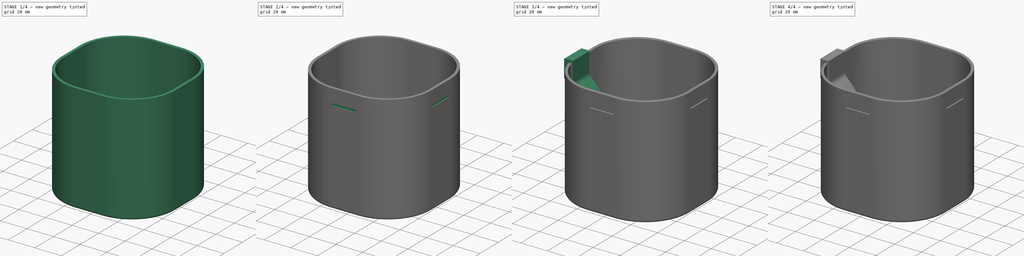
[diagram: build sequence overview — one tinted view per stage of 4, left to right]
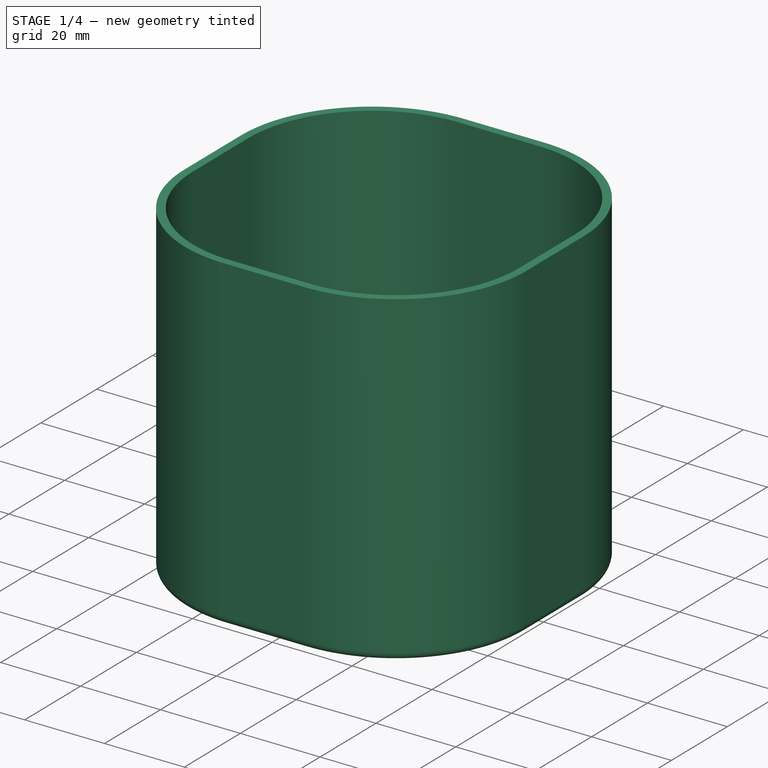
[diagram: stage 1 of 4 — iso view after this stage's code; geometry added in this stage tinted green]
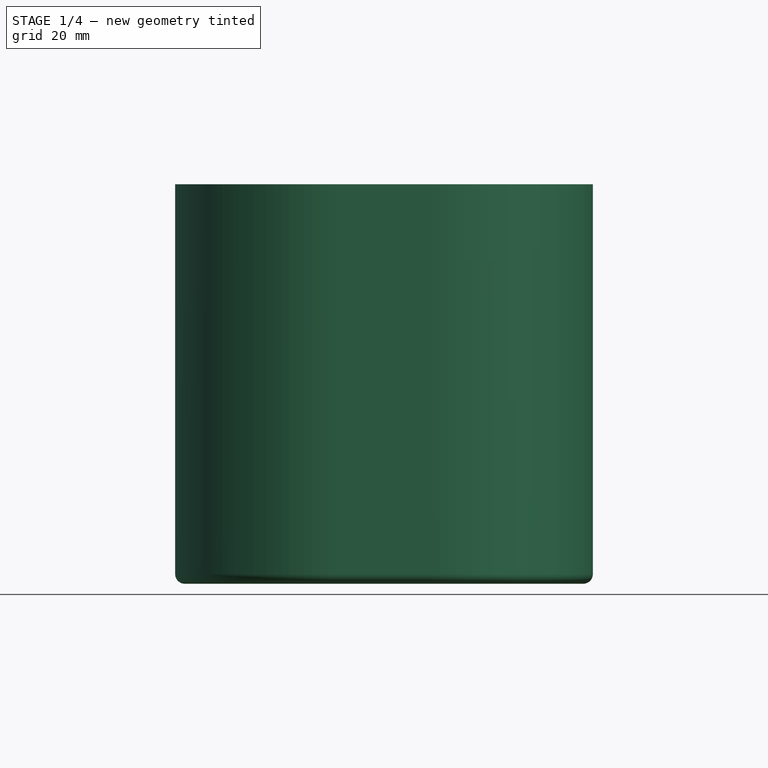
[diagram: stage 1 of 4 — front view after this stage's code; geometry added in this stage tinted green]
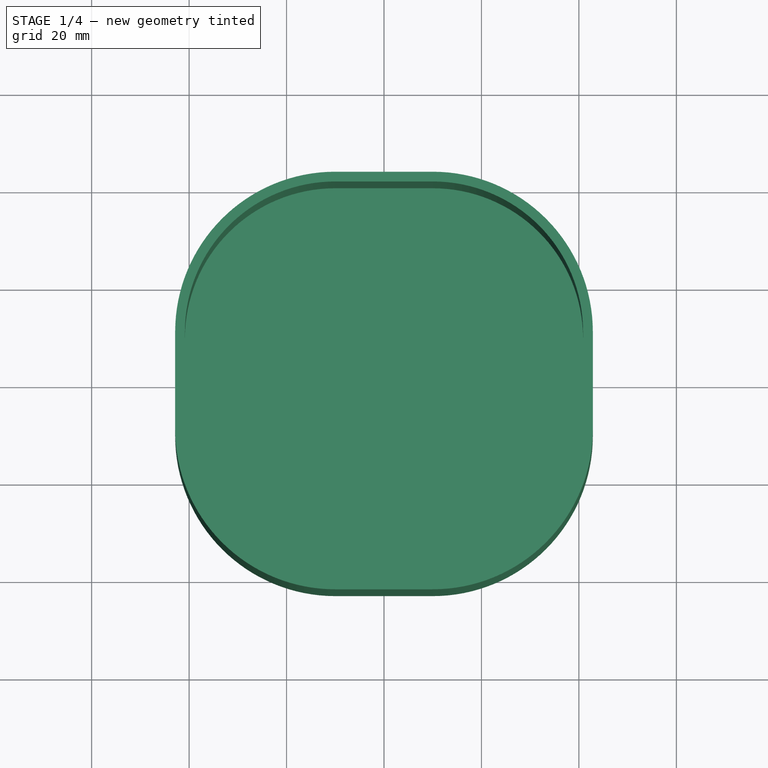
[diagram: stage 1 of 4 — top view after this stage's code; geometry added in this stage tinted green]
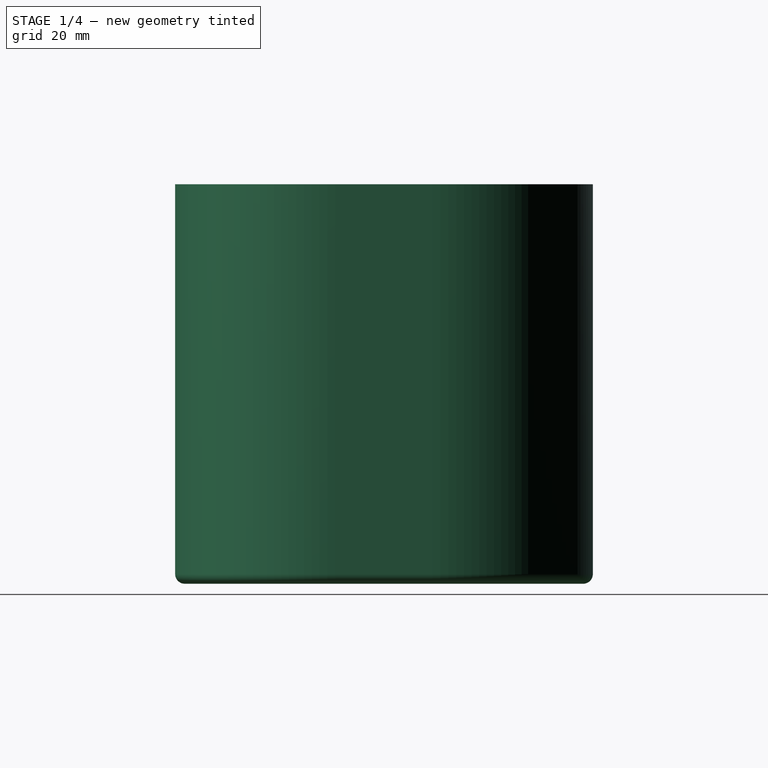
[diagram: stage 1 of 4 — right view after this stage's code; geometry added in this stage tinted green]
FCSTD DOCUMENT  (FreeCAD 0.22R38314 (Git))
Label: cup holder 2
License: All rights reserved
LicenseURL: http://en.wikipedia.org/wiki/All_rights_reserved
objects: Sketcher::SketchObject×6, PartDesign::Pad×4, PartDesign::Body×3, PartDesign::Chamfer×2, Spreadsheet::Sheet×1, PartDesign::Thickness×1, PartDesign::Pocket×1, PartDesign::PolarPattern×1, PartDesign::Hole×1
note: 38 computed .brp shape members not serialized (recipe doc carries the construction recipe); baked Part::Feature solids carry a one-line shape summary decoded from their .brp

FEATURE [Spreadsheet::Sheet] Spreadsheet  label="q"
  cells = A2='diameter; B2(diameter)=90; A3='height; B3(height)=80; A4='wall; B4(wall)=2; A5='hole spacing; B5(hole_spacing)=40; A6='notch offset; B6(notch_offset)=10; A7='notch depth; B7(notch_depth)=1; A8='notch length; B8(notch_length)=18; A9='notch height; B9(notch_height)=2; A11='wing thickness; B11(wing_thickness)=1.2; A12='wing radius; B12(wing_radius)=32; A13='margin; B13(margin)=0.2; A14='wing key height; B14(wing_key_height)=1; A15='wing key depth; B15(wing_key_depth)=0.8
FEATURE [Sketcher::SketchObject] Sketch
  AttachmentSupport = -> [XY_Plane]
  FullyConstrained = true
  MapMode = 5
  expr: Constraints[20] = <<q>>.notch_length + 2
  expr: Constraints[23] = <<q>>.diameter
  sketch-geometry (13):
    g0: LineSegment StartX=-40.8579 StartY=10 StartZ=0 EndX=-40.8579 EndY=-10 EndZ=0
    g1: LineSegment StartX=-10 StartY=-40.8579 StartZ=0 EndX=10 EndY=-40.8579 EndZ=0
    g2: LineSegment StartX=40.8579 StartY=-10 StartZ=0 EndX=40.8579 EndY=10 EndZ=0
    g3: LineSegment StartX=10 StartY=40.8579 StartZ=0 EndX=-10 EndY=40.8579 EndZ=0
    g4: ArcOfCircle CenterX=-10 CenterY=10 CenterZ=0 NormalX=0 NormalY=0 NormalZ=1 AngleXU=0 Radius=30.8579 StartAngle=1.5708 EndAngle=3.14159
    g5: ArcOfCircle CenterX=-10 CenterY=-10 CenterZ=0 NormalX=0 NormalY=0 NormalZ=1 AngleXU=0 Radius=30.8579 StartAngle=3.14159 EndAngle=4.71239
    g6: ArcOfCircle CenterX=10 CenterY=-10 CenterZ=0 NormalX=0 NormalY=0 NormalZ=1 AngleXU=0 Radius=30.8579 StartAngle=4.71239 EndAngle=6.28319
    g7: ArcOfCircle CenterX=10 CenterY=10 CenterZ=0 NormalX=0 NormalY=0 NormalZ=1 AngleXU=0 Radius=30.8579 StartAngle=0 EndAngle=1.5708
    g8: GeomPoint X=-40.8579 Y=40.8579 Z=0
    g9: GeomPoint X=40.8579 Y=-40.8579 Z=0
    g10: Circle CenterX=0 CenterY=0 CenterZ=0 NormalX=0 NormalY=0 NormalZ=1 AngleXU=0 Radius=45
    g11: GeomPoint X=-31.8198 Y=-31.8198 Z=0
    g12: LineSegment StartX=0 StartY=0 StartZ=0 EndX=-31.8198 EndY=-31.8198 EndZ=0
  constraints (30):
    c: Tangent(g0,g4) = -1.5708
    c: Tangent(g0,g5) = -1.5708
    c: Tangent(g1,g5) = -1.5708
    c: Tangent(g1,g6) = -1.5708
    c: Tangent(g2,g6) = -1.5708
    c: Tangent(g2,g7) = -1.5708
    c: Tangent(g3,g7) = -1.5708
    c: Tangent(g3,g4) = -1.5708
    c: Vertical(g0)
    c: Vertical(g2)
    c: Horizontal(g1)
    c: Horizontal(g3)
    c: Equal(g4,g5)
    c: Equal(g5,g6)
    c: Equal(g6,g7)
    c: PointOnObject(g8,g0)
    c: PointOnObject(g8,g3)
    c: PointOnObject(g9,g1)
    c: PointOnObject(g9,g2)
    c: Symmetric(g5,g7,g-1)
    c: DistanceX(g1,g1) = 20
    c: Equal(g1,g2)
    c: Coincident(g10,g-1)
    c: Diameter(g10) = 90
    c: PointOnObject(g11,g5)
    c: Coincident(g12,g10)
    c: Coincident(g12,g11)
    c: Angle(g-2,g12) = 2.35619
    c: PointOnObject(g11,g10)
    c: DistanceX(g0,g10) = 40.8579  'flat_distance'
FEATURE [PartDesign::Pad] Pad
  Direction = (0,0,1)
  Length = 80
  Length2 = 10
  Profile = -> Sketch
  ReferenceAxis = -> Sketch [N_Axis]
  Suppressed = false
  Type = 0
  expr: Length = <<q>>.height
FEATURE [PartDesign::Thickness] Thickness
  Base = -> Pad [Face10]
  BaseFeature = -> Pad
  Intersection = false
  Join = 0
  Mode = 0
  SupportTransform = false
  Suppressed = false
  Value = 2
  expr: Value = <<q>>.wall
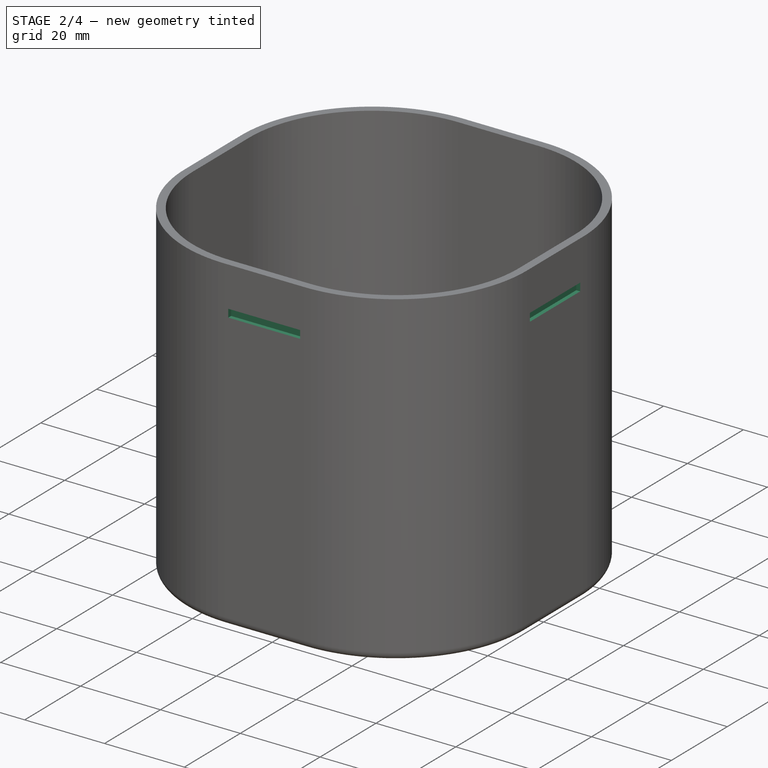
[diagram: stage 2 of 4 — iso view after this stage's code; geometry added in this stage tinted green]
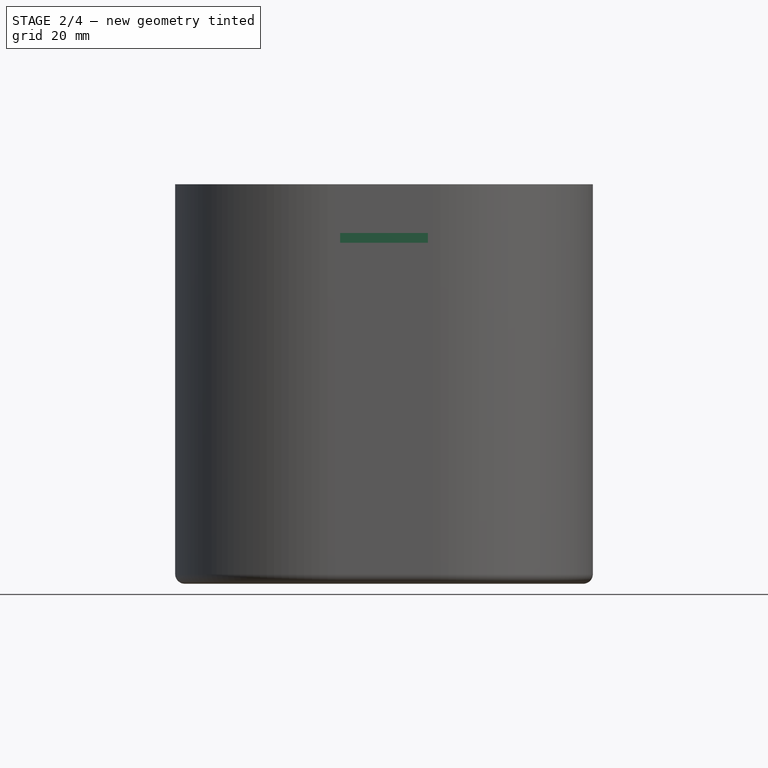
[diagram: stage 2 of 4 — front view after this stage's code; geometry added in this stage tinted green]
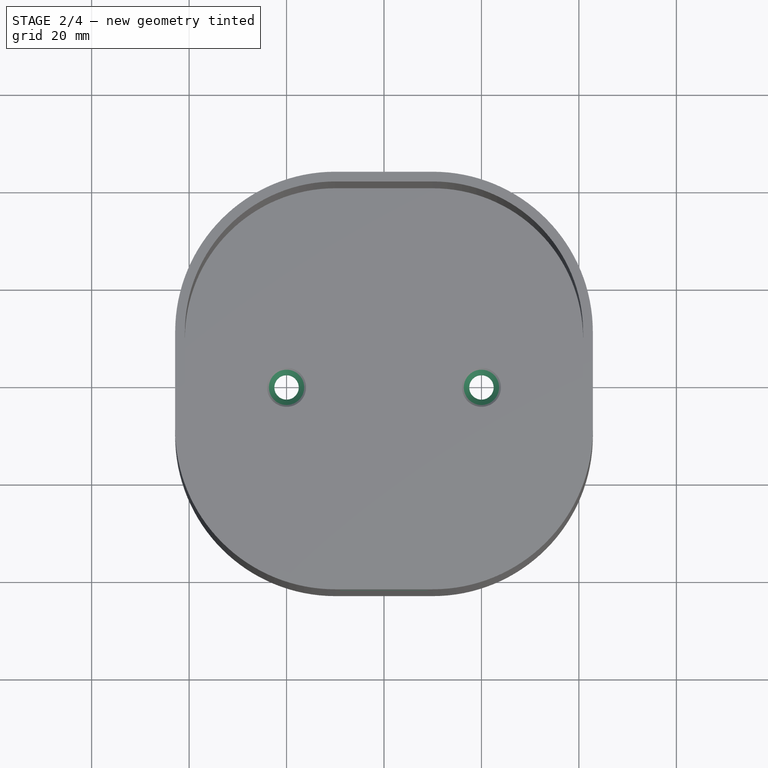
[diagram: stage 2 of 4 — top view after this stage's code; geometry added in this stage tinted green]
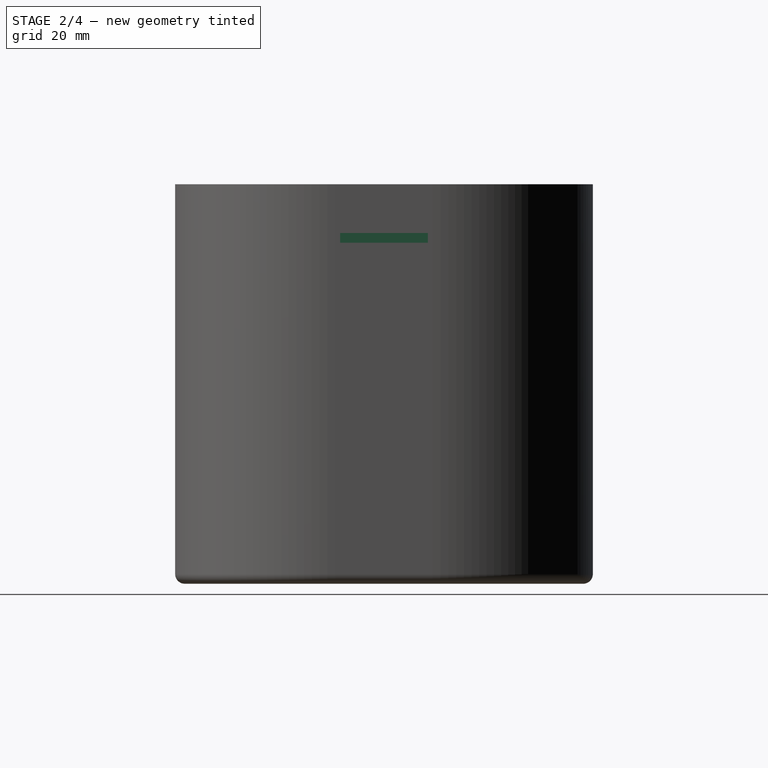
[diagram: stage 2 of 4 — right view after this stage's code; geometry added in this stage tinted green]
FEATURE [Sketcher::SketchObject] Sketch001
  AttachmentSupport = -> [Thickness]
  ExternalGeometry = -> [Thickness]
  FullyConstrained = true
  MapMode = 5
  Placement = pos=(0,-42.8579,0) rot=(1,0,0;1.5708rad)
  expr: Constraints[10] = <<q>>.notch_offset
  expr: Constraints[7] = <<q>>.notch_length
  expr: Constraints[8] = <<q>>.notch_height
  sketch-geometry (4):
    g0: LineSegment StartX=-9 StartY=70 StartZ=0 EndX=-9 EndY=68 EndZ=0
    g1: LineSegment StartX=-9 StartY=68 StartZ=0 EndX=9 EndY=68 EndZ=0
    g2: LineSegment StartX=9 StartY=68 StartZ=0 EndX=9 EndY=70 EndZ=0
    g3: LineSegment StartX=9 StartY=70 StartZ=0 EndX=-9 EndY=70 EndZ=0
  constraints (11):
    c: Coincident(g0,g1)
    c: Coincident(g1,g2)
    c: Coincident(g2,g3)
    c: Coincident(g3,g0)
    c: Vertical(g0)
    c: Vertical(g2)
    c: Horizontal(g1)
    c: DistanceX(g1,g1) = 18
    c: DistanceY(g2,g2) = 2
    c: Symmetric(g2,g0,g-2)
    c: DistanceY(g2,g-3) = 10
FEATURE [PartDesign::Pocket] Pocket
  BaseFeature = -> Thickness
  Direction = (0,1,-2e-16)
  Length = 1
  Length2 = 5
  Profile = -> Sketch001
  ReferenceAxis = -> Sketch001 [N_Axis]
  Suppressed = false
  Type = 0
  expr: Length = <<q>>.notch_depth
FEATURE [PartDesign::PolarPattern] PolarPattern
  Angle = 360
  Axis = -> Z_Axis
  BaseFeature = -> Pocket
  Mode = 0
  Occurrences = 4
  Offset = 120
  Originals = -> [Pocket]
  Suppressed = false
  TransformMode = 0
FEATURE [PartDesign::Body] Body001  label="wing"
  AllowCompound = false
  Group = -> [Sketch002,Pad001,Sketch003,Pad003,Chamfer]
  Origin = -> Origin001
  Tip = -> Chamfer
FEATURE [Sketcher::SketchObject] Sketch005
  AttachmentSupport = -> [XY_Plane]
  FullyConstrained = true
  MapMode = 5
  expr: Constraints[1] = <<q>>.hole_spacing
  expr: Constraints[3] = 4
  sketch-geometry (2):
    g0: Circle CenterX=-20 CenterY=0 CenterZ=0 NormalX=0 NormalY=0 NormalZ=1 AngleXU=0 Radius=2
    g1: Circle CenterX=20 CenterY=0 CenterZ=0 NormalX=0 NormalY=0 NormalZ=1 AngleXU=0 Radius=2
  constraints (5):
    c: Symmetric(g0,g1,g-2)
    c: DistanceX(g0,g1) = 40
    c: PointOnObject(g1,g-1)
    c: Diameter(g1) = 4
    c: Equal(g1,g0)
FEATURE [PartDesign::Hole] Hole
  BaseFeature = -> PolarPattern
  CustomThreadClearance = 0
  Depth = 25
  DepthType = 0
  Diameter = 5
  DrillForDepth = false
  DrillPoint = 1
  DrillPointAngle = 90
  HoleCutCountersinkAngle = 90
  HoleCutCustomValues = false
  HoleCutDepth = 0
  HoleCutDiameter = 8
  HoleCutType = 2
  ModelThread = false
  Profile = -> Sketch005
  Suppressed = false
  Tapered = false
  TaperedAngle = 90
  ThreadClass = 0
  ThreadDepth = 25
  ThreadDepthType = 0
  ThreadDirection = 0
  ThreadFit = 0
  ThreadSize = 6
  ThreadType = 3
  Threaded = false
  UseCustomThreadClearance = false
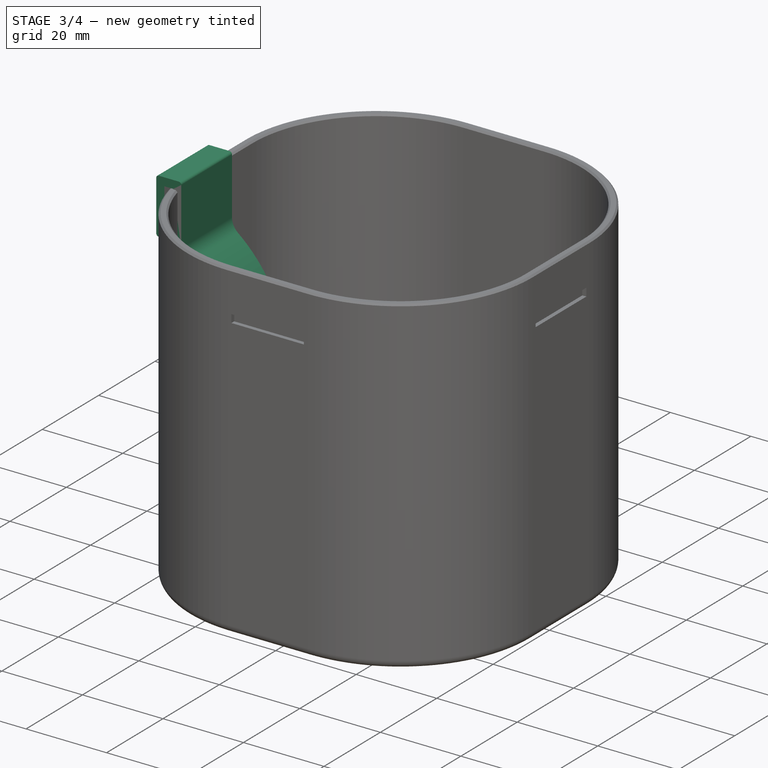
[diagram: stage 3 of 4 — iso view after this stage's code; geometry added in this stage tinted green]
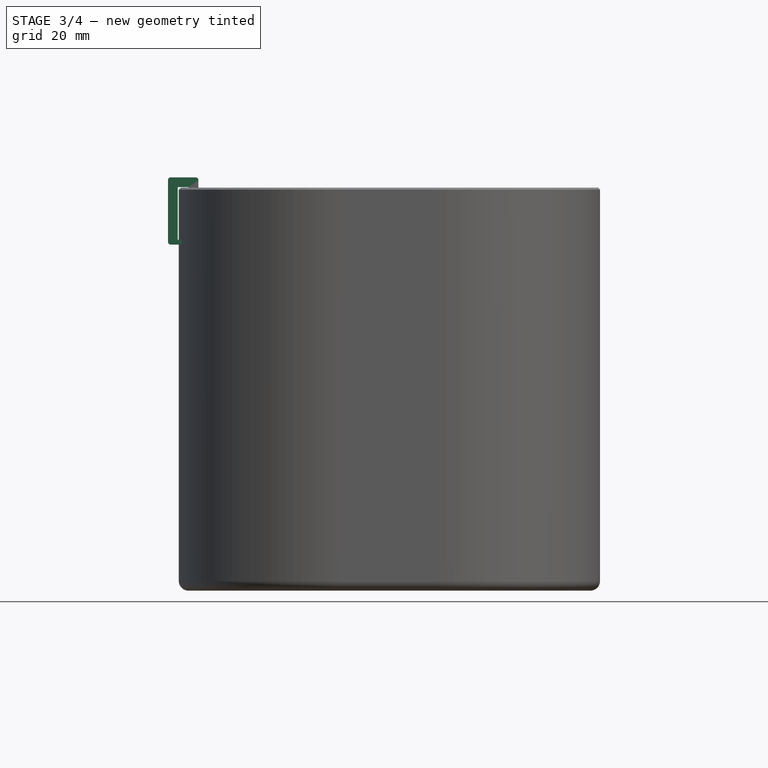
[diagram: stage 3 of 4 — front view after this stage's code; geometry added in this stage tinted green]
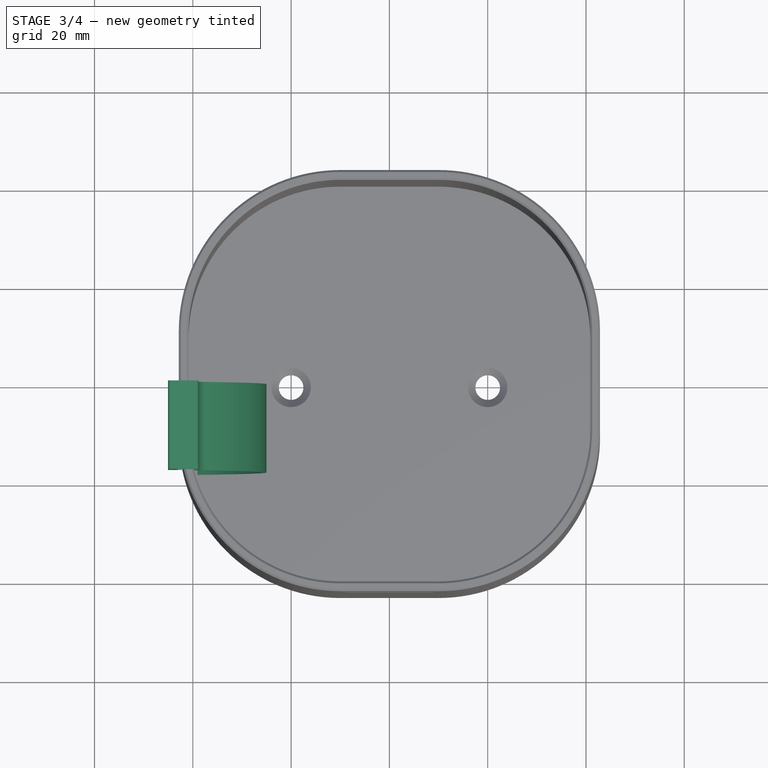
[diagram: stage 3 of 4 — top view after this stage's code; geometry added in this stage tinted green]
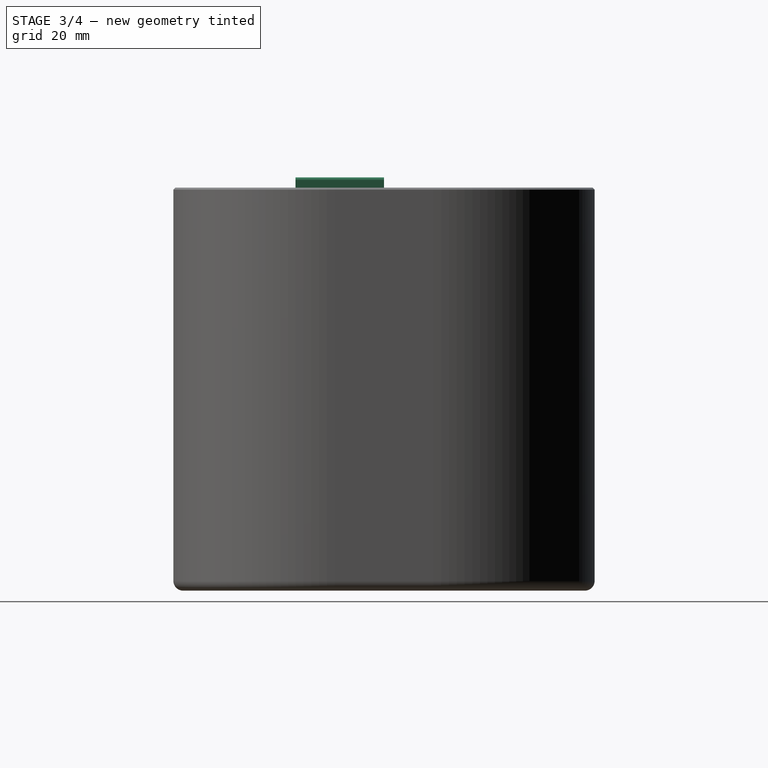
[diagram: stage 3 of 4 — right view after this stage's code; geometry added in this stage tinted green]
FEATURE [Sketcher::SketchObject] Sketch002
  AttachmentSupport = -> [XZ_Plane001]
  FullyConstrained = true
  MapMode = 5
  Placement = pos=(0,0,0) rot=(1,0,0;1.5708rad)
  expr: Constraints[16] = <<q>>.wing_key_height
  expr: Constraints[17] = <<q>>.wing_key_depth
  expr: Constraints[18] = <<q>>.wall
  expr: Constraints[19] = <<q>>.wall + <<q>>.wing_key_depth
  expr: Constraints[20] = <<q>>.wall + <<q>>.margin
  expr: Constraints[21] = <<q>>.notch_offset + (<<q>>.notch_height - <<q>>.wing_key_height) / 2 + <<q>>.margin
  expr: Constraints[22] = <<q>>.wall
  expr: Constraints[23] = <<q>>.height + <<q>>.margin / 2
  expr: Constraints[46] = Sketch.Constraints.flat_distance
  sketch-geometry (19):
    g0: LineSegment StartX=-45.0579 StartY=81.5 StartZ=0 EndX=-45.0579 EndY=69 EndZ=0
    g1: LineSegment StartX=-44.4579 StartY=68.4 StartZ=0 EndX=-42.8579 EndY=68.4 EndZ=0
    g2: LineSegment StartX=-42.2579 StartY=69 StartZ=0 EndX=-42.2579 EndY=69.4 EndZ=0
    g3: LineSegment StartX=-42.2579 StartY=69.4 StartZ=0 EndX=-43.0579 EndY=69.4 EndZ=0
    g4: LineSegment StartX=-43.0579 StartY=69.4 StartZ=0 EndX=-43.0579 EndY=80.1 EndZ=0
    g5: LineSegment StartX=-43.0579 StartY=80.1 StartZ=0 EndX=-40.8579 EndY=80.1 EndZ=0
    g6: LineSegment StartX=-40.8579 StartY=80.1 StartZ=0 EndX=-40.8579 EndY=68.4 EndZ=0
    g7: LineSegment StartX=-40.8579 StartY=68.4 StartZ=0 EndX=-38.8579 EndY=68.4 EndZ=0
    g8: LineSegment StartX=-38.8579 StartY=68.4 StartZ=0 EndX=-38.8579 EndY=81.5 EndZ=0
    g9: LineSegment StartX=-39.4579 StartY=82.1 StartZ=0 EndX=-44.4579 EndY=82.1 EndZ=0
    g10: ArcOfCircle CenterX=-44.4579 CenterY=81.5 CenterZ=0 NormalX=0 NormalY=0 NormalZ=1 AngleXU=0 Radius=0.6 StartAngle=1.5708 EndAngle=3.14159
    g11: GeomPoint X=-45.0579 Y=82.1 Z=0
    g12: ArcOfCircle CenterX=-39.4579 CenterY=81.5 CenterZ=0 NormalX=0 NormalY=0 NormalZ=1 AngleXU=0 Radius=0.6 StartAngle=6.5e-15 EndAngle=1.5708
    g13: GeomPoint X=-38.8579 Y=82.1 Z=0
    g14: ArcOfCircle CenterX=-44.4579 CenterY=69 CenterZ=0 NormalX=0 NormalY=0 NormalZ=1 AngleXU=0 Radius=0.6 StartAngle=3.14159 EndAngle=4.71239
    g15: GeomPoint X=-45.0579 Y=68.4 Z=0
    g16: GeomPoint X=-38.8579 Y=68.4 Z=0
    g17: ArcOfCircle CenterX=-42.8579 CenterY=69 CenterZ=0 NormalX=0 NormalY=0 NormalZ=1 AngleXU=0 Radius=0.6 StartAngle=4.71239 EndAngle=6.28319
    g18: GeomPoint X=-42.2579 Y=68.4 Z=0
  constraints (47):
    c: Vertical(g0)
    c: Horizontal(g1)
    c: Vertical(g2)
    c: Coincident(g2,g3)
    c: Coincident(g3,g4)
    c: Vertical(g4)
    c: Coincident(g4,g5)
    c: Horizontal(g5)
    c: Coincident(g5,g6)
    c: Vertical(g6)
    c: Coincident(g6,g7)
    c: Horizontal(g7)
    c: Vertical(g8)
    c: Horizontal(g9)
    c: Horizontal(g6,g18)
    c: Horizontal(g3)
    c: DistanceY(g18,g2) = 1
    c: DistanceX(g3,g3) = 0.8
    c: DistanceX(g7,g16) = 2
    c: DistanceX(g15,g18) = 2.8
    c: DistanceX(g5,g5) = 2.2
    c: DistanceY(g2,g4) = 10.7
    c: DistanceY(g5,g13) = 2
    c: DistanceY(g-1,g5) = 80.1
    c: PointOnObject(g11,g9)
    c: PointOnObject(g11,g0)
    c: Tangent(g9,g10) = -1.5708
    c: Tangent(g0,g10) = -1.5708
    c: PointOnObject(g13,g9)
    c: PointOnObject(g13,g8)
    c: Tangent(g9,g12) = -1.5708
    c: Tangent(g8,g12) = -1.5708
    c: PointOnObject(g15,g1)
    c: PointOnObject(g15,g0)
    c: Tangent(g1,g14) = -1.5708
    c: Tangent(g0,g14) = -1.5708
    c: PointOnObject(g18,g1)
    c: PointOnObject(g18,g2)
    c: Tangent(g1,g17) = -1.5708
    c: Tangent(g2,g17) = -1.5708
    c: Equal(g10,g12)
    c: Equal(g10,g14)
    c: Equal(g10,g17)
    c: Radius(g10) = 0.6
    c: Coincident(g8,g16)
    c: Coincident(g7,g8)
    c: DistanceX(g5,g-1) = 40.8579
FEATURE [PartDesign::Pad] Pad001
  Direction = (0,-1,2e-16)
  Length = 18
  Length2 = 10
  Placement = pos=(0,0,0) rot=(1,0,0;1.5708rad)
  Profile = -> Sketch002
  ReferenceAxis = -> Sketch002 [N_Axis]
  Suppressed = false
  Type = 0
  expr: Length = <<q>>.notch_length
FEATURE [PartDesign::Body] Body002  label="Body"
  AllowCompound = false
  Group = -> [Sketch004,Pad002]
  Origin = -> Origin002
  Tip = -> Pad002
FEATURE [PartDesign::Pad] Pad003
  BaseFeature = -> Pad001
  Direction = (0,-1,2e-16)
  Length = 18
  Length2 = 10
  Placement = pos=(0,0,0) rot=(1,0,0;1.5708rad)
  Profile = -> Sketch003
  ReferenceAxis = -> Sketch003 [N_Axis]
  Refine = true
  Suppressed = false
  Type = 0
  expr: Length = <<q>>.notch_length
FEATURE [PartDesign::Chamfer] Chamfer001
  Angle = 45
  Base = -> Hole [Face5]
  BaseFeature = -> Hole
  ChamferType = 0
  FlipDirection = false
  Size = 0.4
  Size2 = 1
  SupportTransform = false
  Suppressed = false
  UseAllEdges = false
FEATURE [PartDesign::Body] Body  label="body"
  AllowCompound = false
  Group = -> [Sketch,Pad,Thickness,Sketch001,Pocket,PolarPattern,Sketch005,Hole,Chamfer001]
  Origin = -> Origin
  Tip = -> Chamfer001
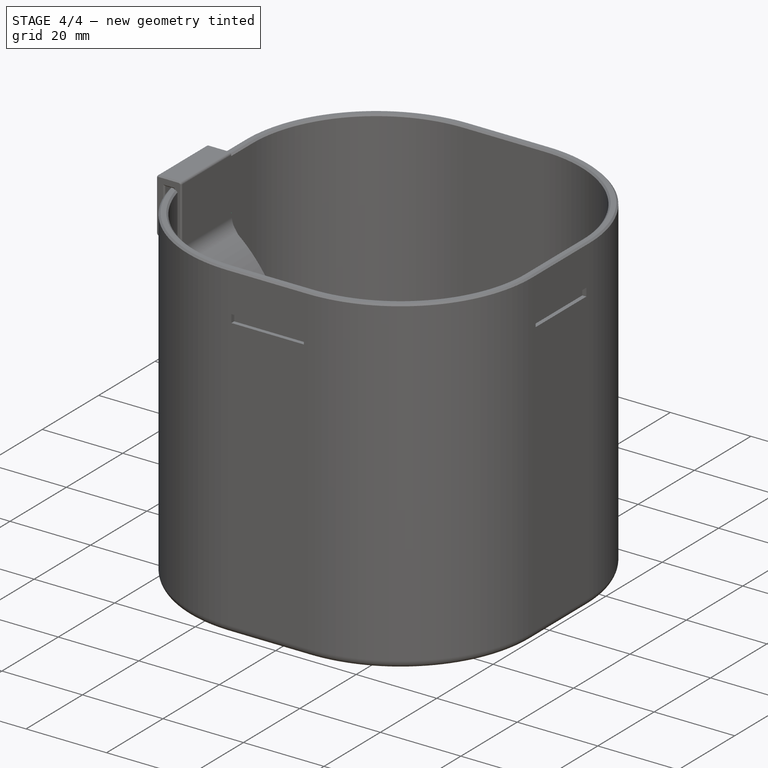
[diagram: stage 4 of 4 — iso view after this stage's code; geometry added in this stage tinted green]
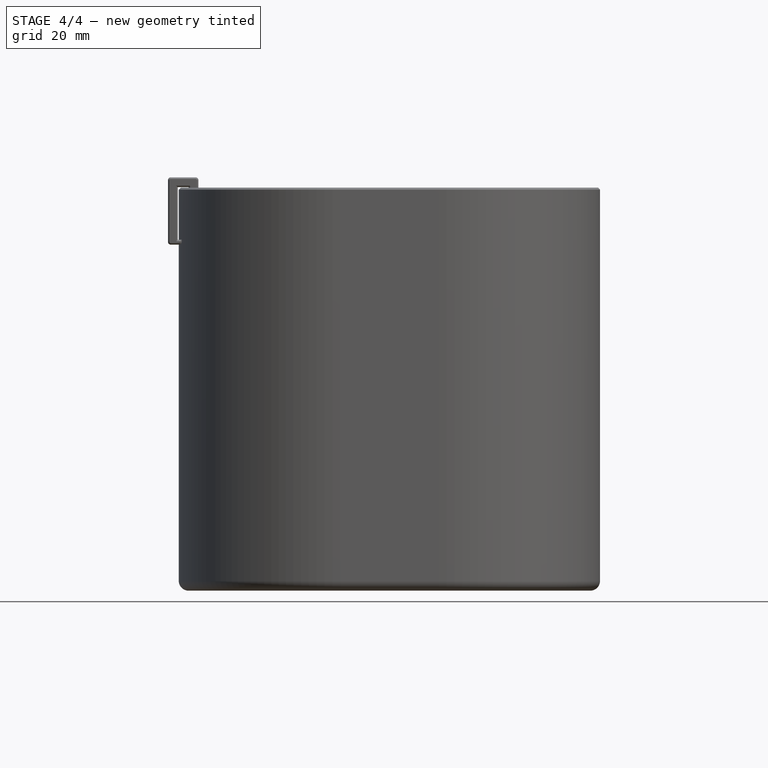
[diagram: stage 4 of 4 — front view after this stage's code; geometry added in this stage tinted green]
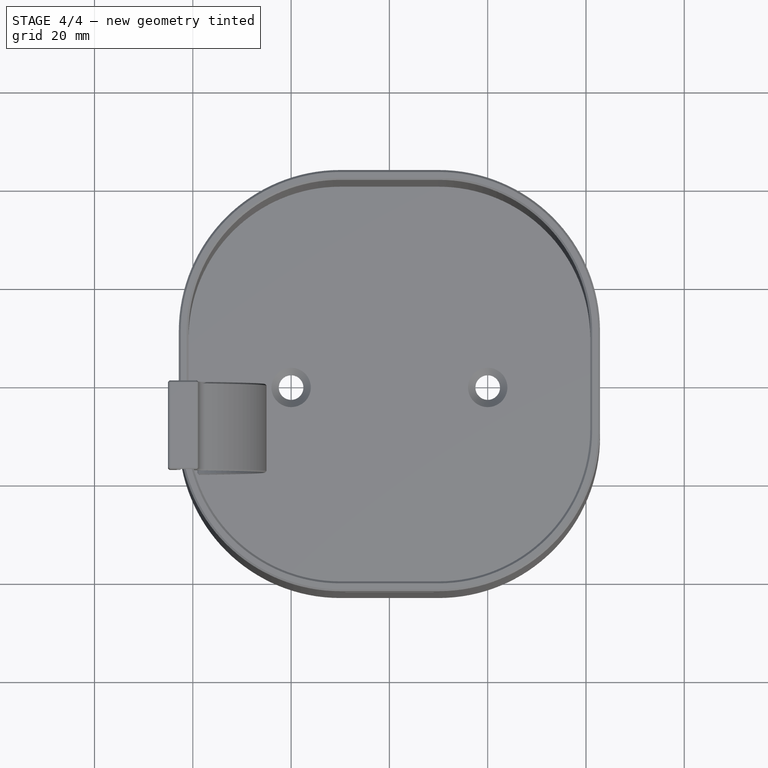
[diagram: stage 4 of 4 — top view after this stage's code; geometry added in this stage tinted green]
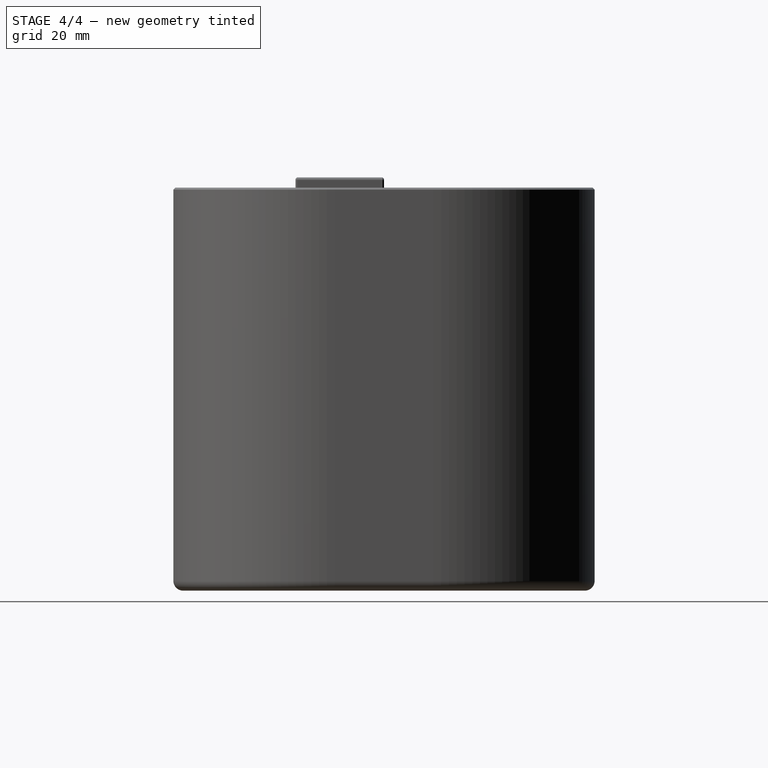
[diagram: stage 4 of 4 — right view after this stage's code; geometry added in this stage tinted green]
FEATURE [Sketcher::SketchObject] Sketch003
  AttachmentOffset = pos=(0,0.2,0) rot=(0,0,1;0rad)
  AttachmentSupport = -> [XZ_Plane001]
  ExternalGeometry = -> [Pad001]
  FullyConstrained = true
  MapMode = 5
  Placement = pos=(0,0,0.2) rot=(1,0,0;1.5708rad)
  expr: Constraints[17] = <<q>>.wing_radius
  sketch-geometry (7):
    g0: LineSegment StartX=-38.8579 StartY=67.2 StartZ=0 EndX=-38.8579 EndY=68.2 EndZ=0
    g1: ArcOfCircle CenterX=-57.8271 CenterY=38.4284 CenterZ=0 NormalX=0 NormalY=0 NormalZ=1 AngleXU=0 Radius=32 StartAngle=5.34691 EndAngle=7.21825
    g2: ArcOfCircle CenterX=-57.8271 CenterY=38.4284 CenterZ=0 NormalX=0 NormalY=0 NormalZ=1 AngleXU=0 Radius=32.8157 StartAngle=5.34691 EndAngle=7.18026
    g3: ArcOfCircle CenterX=-38.6161 CenterY=12.3285 CenterZ=0 NormalX=0 NormalY=0 NormalZ=1 AngleXU=0 Radius=0.407847 StartAngle=2.20531 EndAngle=5.34691
    g4: ArcOfCircle CenterX=-35.8579 CenterY=68.2 CenterZ=0 NormalX=0 NormalY=0 NormalZ=1 AngleXU=0 Radius=5 StartAngle=3.14159 EndAngle=4.07666
    g5: ArcOfCircle CenterX=-34.8579 CenterY=67.2 CenterZ=0 NormalX=0 NormalY=0 NormalZ=1 AngleXU=0 Radius=4 StartAngle=3.14159 EndAngle=4.03867
    g6: LineSegment StartX=-38.8579 StartY=68.2 StartZ=0 EndX=-40.8579 EndY=68.2 EndZ=0
  constraints (18):
    c: Vertical(g0)
    c: Coincident(g2,g1)
    c: Tangent(g3,g2) = -1.5708
    c: Tangent(g3,g1) = 1.5708
    c: Tangent(g1,g4) = 1.5708
    c: Tangent(g0,g5) = 1.5708
    c: Tangent(g2,g5) = 1.5708
    c: Coincident(g0,g-3)
    c: Coincident(g4,g-3)
    c: Coincident(g6,g0)
    c: Coincident(g6,g4)
    c: Perpendicular(g4,g6)
    c: Radius(g4) = 5
    c: Radius(g5) = 4
    c: DistanceY(g0,g0) = 1
    c: DistanceY(g-1,g2) = 12
    c: Vertical(g1,g0)
    c: Radius(g1) = 32
FEATURE [Sketcher::SketchObject] Sketch004
  AttachmentSupport = -> [XZ_Plane002]
  ExternalGeometry = -> [Pad001]
  FullyConstrained = true
  MapMode = 5
  Placement = pos=(0,0,0) rot=(1,0,0;1.5708rad)
  expr: Constraints[1] = <<q>>.wing_radius
  expr: Constraints[3] = <<q>>.wing_radius + <<q>>.wing_thickness
  sketch-geometry (7):
    g0: LineSegment StartX=-38.8579 StartY=67.4 StartZ=0 EndX=-38.8579 EndY=68.4 EndZ=0
    g1: ArcOfCircle CenterX=-65.0331 CenterY=45.6447 CenterZ=0 NormalX=0 NormalY=0 NormalZ=1 AngleXU=0 Radius=32 StartAngle=5.62079 EndAngle=6.94558
    g2: ArcOfCircle CenterX=-65.0331 CenterY=45.6447 CenterZ=0 NormalX=0 NormalY=0 NormalZ=1 AngleXU=0 Radius=33.2 StartAngle=5.62079 EndAngle=6.90784
    g3: ArcOfCircle CenterX=-39.3274 CenterY=25.5955 CenterZ=0 NormalX=0 NormalY=0 NormalZ=1 AngleXU=0 Radius=0.6 StartAngle=2.4792 EndAngle=5.62079
    g4: ArcOfCircle CenterX=-35.8579 CenterY=68.4 CenterZ=0 NormalX=0 NormalY=0 NormalZ=1 AngleXU=0 Radius=5 StartAngle=3.14159 EndAngle=3.80399
    g5: ArcOfCircle CenterX=-34.8579 CenterY=67.4 CenterZ=0 NormalX=0 NormalY=0 NormalZ=1 AngleXU=0 Radius=4 StartAngle=3.14159 EndAngle=3.76625
    g6: LineSegment StartX=-38.8579 StartY=68.4 StartZ=0 EndX=-40.8579 EndY=68.4 EndZ=0
  constraints (18):
    c: Vertical(g0)
    c: Radius(g1) = 32
    c: Coincident(g2,g1)
    c: Radius(g2) = 33.2
    c: Tangent(g3,g2) = -1.5708
    c: Tangent(g3,g1) = 1.5708
    c: Tangent(g1,g4) = 1.5708
    c: Tangent(g0,g5) = 1.5708
    c: Tangent(g2,g5) = 1.5708
    c: Coincident(g0,g-3)
    c: Coincident(g4,g-3)
    c: Coincident(g6,g0)
    c: Coincident(g6,g4)
    c: Perpendicular(g4,g6)
    c: Radius(g4) = 5
    c: Radius(g5) = 4
    c: Vertical(g1,g1)
    c: DistanceY(g0,g0) = 1
FEATURE [PartDesign::Pad] Pad002
  Direction = (0,-1,2e-16)
  Length = 10
  Length2 = 10
  Placement = pos=(0,0,0) rot=(1,0,0;1.5708rad)
  Profile = -> Sketch004
  ReferenceAxis = -> Sketch004 [N_Axis]
  Suppressed = false
  Type = 0
FEATURE [PartDesign::Chamfer] Chamfer
  Angle = 45
  Base = -> Pad003 [Face19,Face18]
  BaseFeature = -> Pad003
  ChamferType = 0
  FlipDirection = false
  Placement = pos=(0,0,0) rot=(1,0,0;1.5708rad)
  Size = 0.3
  Size2 = 1
  SupportTransform = false
  Suppressed = false
  UseAllEdges = false
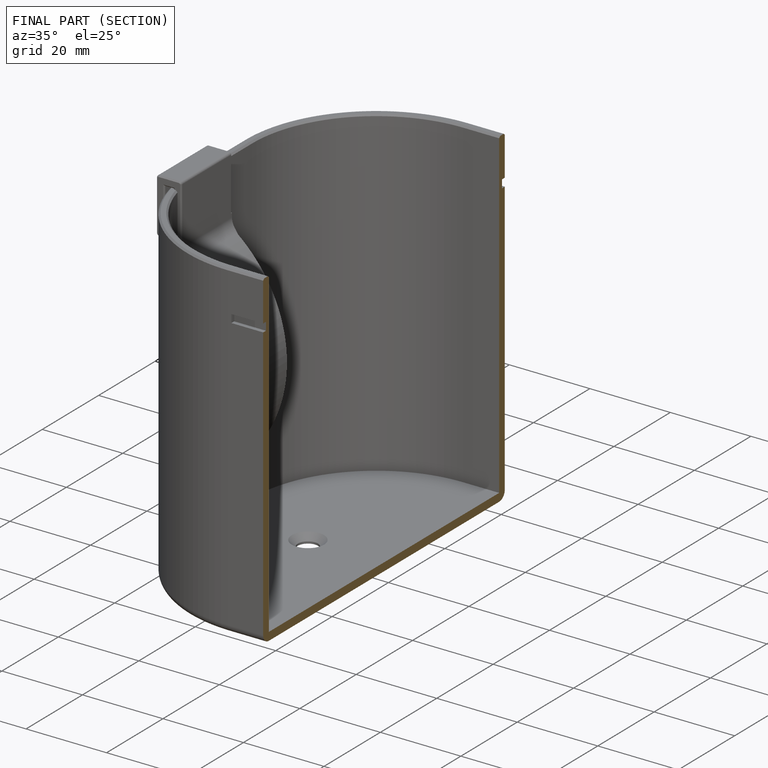
[diagram: finished part — half-section view (interior)]
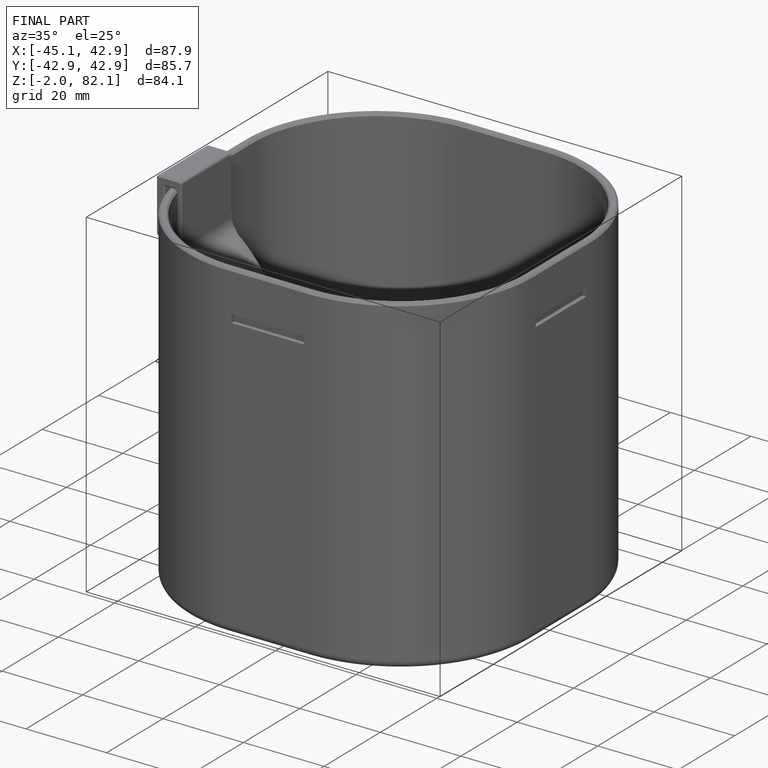
[diagram: finished part — iso view with bounding-box wireframe]
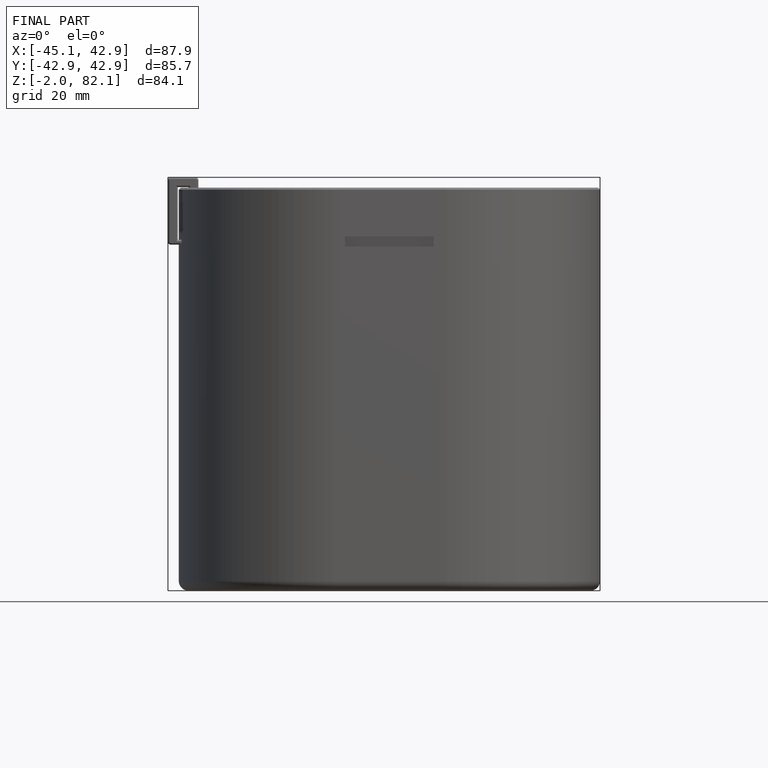
[diagram: finished part — front view with bounding-box wireframe]
